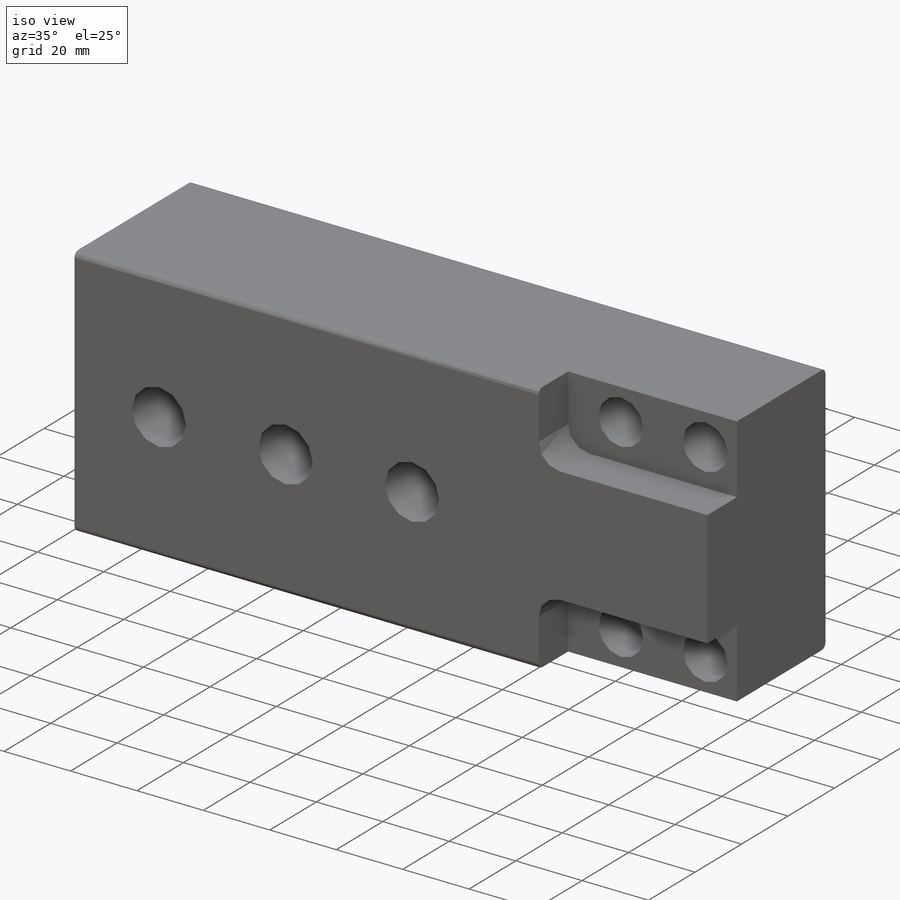
[diagram: iso view]
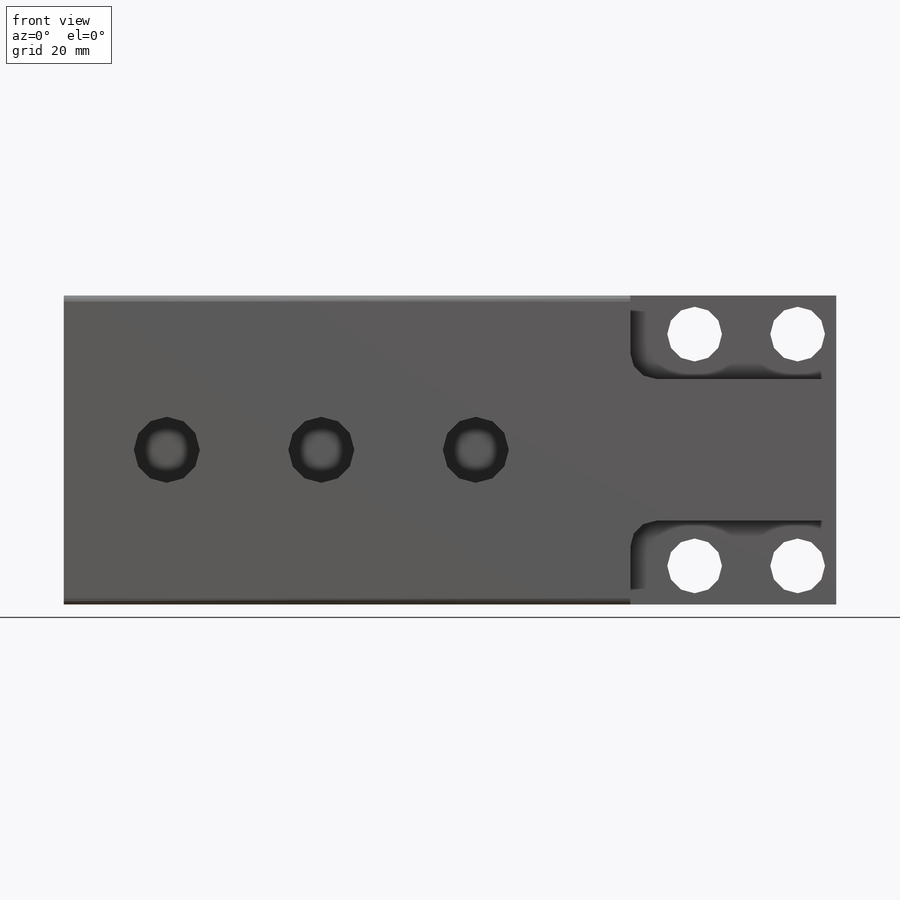
[diagram: front view]
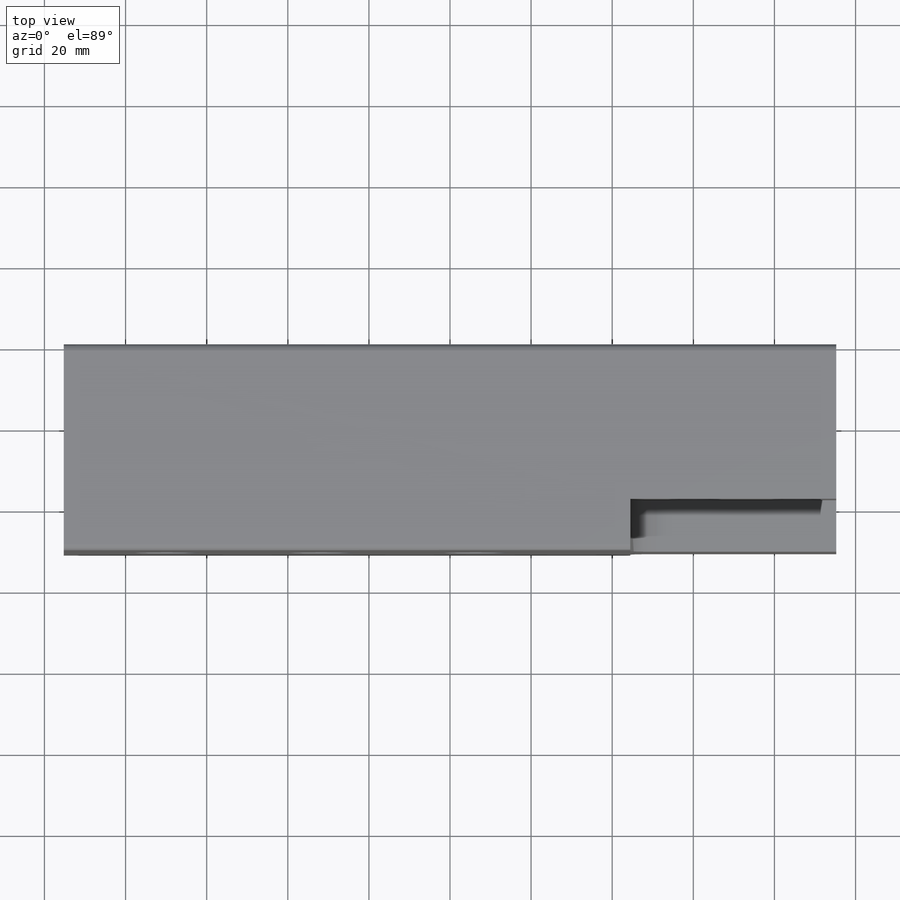
[diagram: top view]
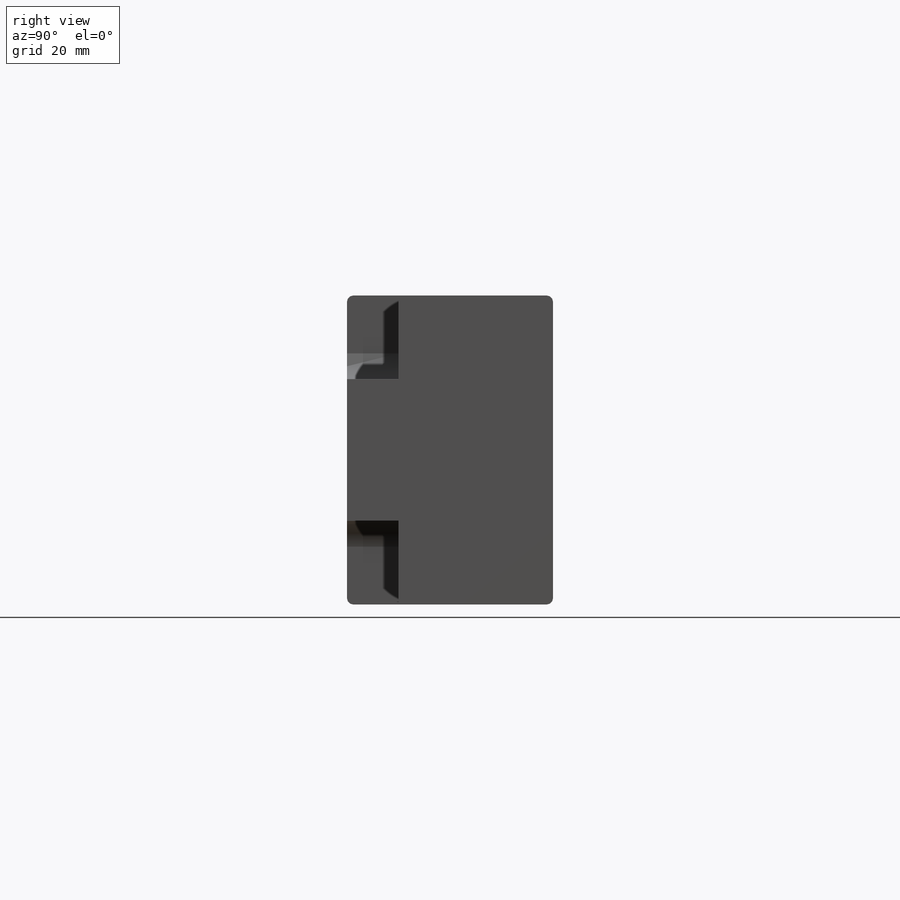
[diagram: right view]
SOLIDWORKS PART (.sldprt)
format: sldprt  version: not decoded by parser v0  size: 607,744 bytes
history: native  units: mm
features: sketch x6, hole x2, material x1, extrude x1, fillet x1, cut_extrude x1 + 1 further entry (+13 scaffold rows collapsed)
feature tree (26):
  scaffold x13  (default folders/planes/origin — collapsed)
  material  "Alloy Steel"
  "Origin"  ID=-1
  sketch  "Sketch1"  dims[D1=76.2mm D2=190.5mm]
  extrude  "Boss-Extrude1"  Depth=50.8mm
  fillet  "Fillet1"  Radius=1.524mm
  hole  "41/64 (0.64063) Diameter Hole1"  Diameter=16.272002mm Depth=26.162mm
  sketch  "Sketch3"  dims[D1=25.4mm D2=38.1mm]
  sketch  "Sketch2"  dims[hole-wizard template sketch: 46 standard entries collapsed; hole parameters kept: c15.Hole Dia.=~16.272002mm c15.Hole Depth=26.162mm c15.D3=~14.816244mm c15.Drill Angle=180.0deg]
  hole  "1/2 (0.5) Diameter Hole1"  Diameter=13.4874mm Depth=50.8mm
  sketch  "Sketch5"  dims[D1=57.15mm D2=9.525mm D3=25.4mm]
  sketch  "Sketch6"  dims[hole-wizard template sketch: 59 standard entries collapsed; hole parameters kept: c18.Thru Hole Dia.=13.4874mm c18.Thru Hole Depth=50.8mm]
  sketch  "Sketch7"  dims[D3=6.35mm D1=20.6248mm D2=50.8mm]
  cut_extrude  "Cut-Extrude1"  Depth=12.7mm
decode coverage: 11 of 11 modeling features carry decoded parameters; 1 rows unclassified (native names shown)
note: ~ marks probable driven/reference dimensions
note: suppression state not decoded; provenance and decode notes live in map.json
